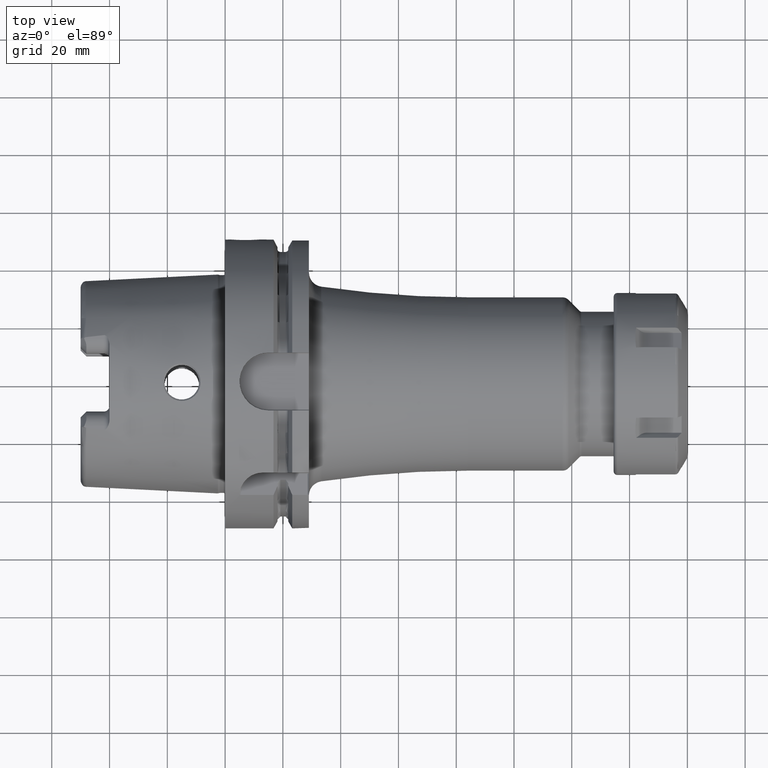
[diagram: clean part render]
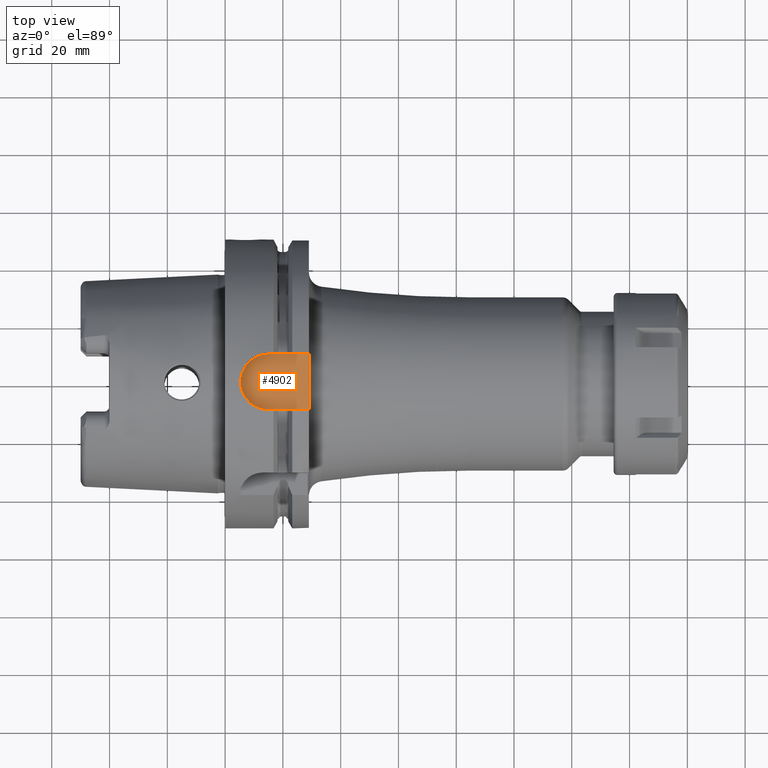
[diagram: same view with one face highlighted and labeled with its STEP entity id]
A machine part, top view. The second image highlights one B-rep face of the part: STEP entity #4902.
In plain terms, the highlighted planar face has unit normal (0, 0, 1).
Its self-contained STEP definition (entity closure, byte-faithful):
#1218=DIRECTION('',(0.E0,1.E0,0.E0));
#1219=VECTOR('',#1218,1.9242E1);
#1220=CARTESIAN_POINT('',(2.9E1,-9.621E0,4.39E1));
#1221=LINE('',#1220,#1219);
#1711=DIRECTION('',(1.E0,-1.153869615320E-8,-1.153742209928E-8));
#1712=VECTOR('',#1711,1.402899999796E1);
#1713=CARTESIAN_POINT('',(1.497100000204E1,-9.620999838124E0,4.390000016186E1));
#1714=LINE('',#1713,#1712);
#1715=CARTESIAN_POINT('',(1.4971E1,-1.296740492762E-13,4.390000017876E1));
#1716=DIRECTION('',(0.E0,0.E0,1.E0));
#1717=DIRECTION('',(0.E0,1.E0,0.E0));
#1718=AXIS2_PLACEMENT_3D('',#1715,#1716,#1717);
#1720=DIRECTION('',(-1.E0,-1.153879985535E-8,1.153732384197E-8));
#1721=VECTOR('',#1720,1.402899999786E1);
#1722=CARTESIAN_POINT('',(2.9E1,9.621E0,4.39E1));
#1723=LINE('',#1722,#1721);
#3033=CARTESIAN_POINT('',(2.9E1,9.621E0,4.39E1));
#3035=VERTEX_POINT('',#3033);
#3036=CARTESIAN_POINT('',(2.9E1,-9.621E0,4.39E1));
#3038=VERTEX_POINT('',#3036);
#3078=CARTESIAN_POINT('',(1.497100000204E1,-9.620999838124E0,4.390000016186E1));
#3079=VERTEX_POINT('',#3078);
#3082=CARTESIAN_POINT('',(1.4971E1,9.620999207551E0,4.390000017876E1));
#3083=VERTEX_POINT('',#3082);
#4889=CARTESIAN_POINT('',(0.E0,0.E0,4.39E1));
#4890=DIRECTION('',(0.E0,0.E0,1.E0));
#4891=DIRECTION('',(1.E0,0.E0,0.E0));
#4892=AXIS2_PLACEMENT_3D('',#4889,#4890,#4891);
#4893=PLANE('',#4892);
#4895=ORIENTED_EDGE('',*,*,#4894,.F.);
#4897=ORIENTED_EDGE('',*,*,#4896,.F.);
#4898=ORIENTED_EDGE('',*,*,#4881,.F.);
#4899=ORIENTED_EDGE('',*,*,#4456,.F.);
#4900=EDGE_LOOP('',(#4895,#4897,#4898,#4899));
#4901=FACE_OUTER_BOUND('',#4900,.F.);
#4902=ADVANCED_FACE('',(#4901),#4893,.T.);
#1719=CIRCLE('',#1718,9.620999207551E0);
#4456=EDGE_CURVE('',#3038,#3035,#1221,.T.);
#4881=EDGE_CURVE('',#3035,#3083,#1723,.T.);
#4894=EDGE_CURVE('',#3079,#3038,#1714,.T.);
#4896=EDGE_CURVE('',#3083,#3079,#1719,.T.);